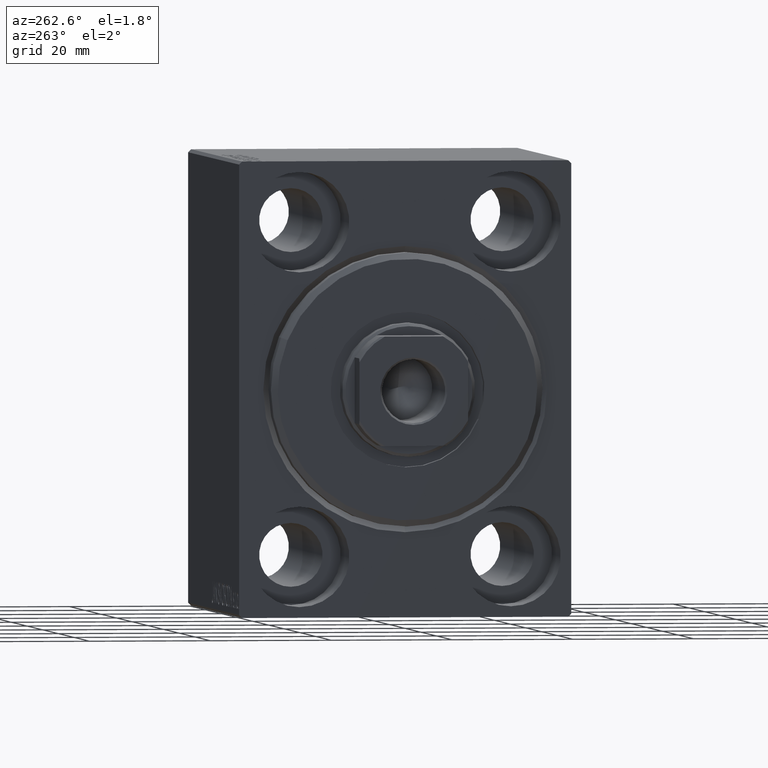
[diagram: clean part render]
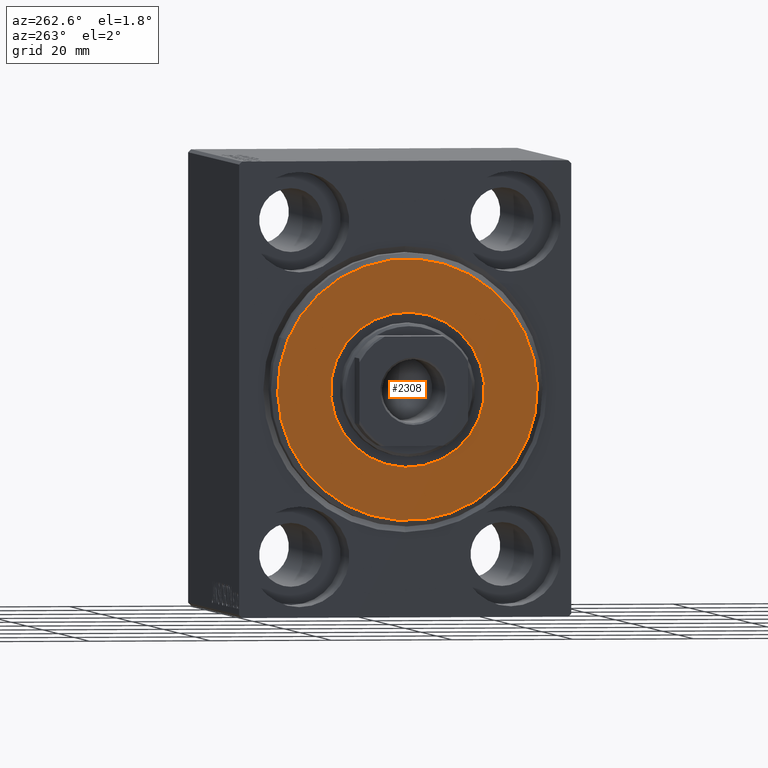
[diagram: same view with one face highlighted and labeled with its STEP entity id]
A machine part, auxiliary view. The second image highlights one B-rep face of the part: STEP entity #2308.
In plain terms, the highlighted planar face has unit normal (-1, 0, 0).
Its self-contained STEP definition (entity closure, byte-faithful):
#2308 = ADVANCED_FACE ( 'NONE', ( #19624, #9853 ), #12524, .T. ) ;
#6314 = AXIS2_PLACEMENT_3D ( 'NONE', #17160, #23602, #34060 ) ;
#7454 = VERTEX_POINT ( 'NONE', #16832 ) ;
#7637 = AXIS2_PLACEMENT_3D ( 'NONE', #28998, #12092, #15189 ) ;
#7808 = VERTEX_POINT ( 'NONE', #35315 ) ;
#8583 = ORIENTED_EDGE ( 'NONE', *, *, #16064, .T. ) ;
#9853 = FACE_BOUND ( 'NONE', #20686, .T. ) ;
#10906 = ORIENTED_EDGE ( 'NONE', *, *, #16219, .T. ) ;
#12092 = DIRECTION ( 'NONE',  ( -1.000000000000000000, 0.000000000000000000, -0.000000000000000000 ) ) ;
#12524 = PLANE ( 'NONE',  #20953 ) ;
#13306 = ORIENTED_EDGE ( 'NONE', *, *, #42585, .T. ) ;
#13356 = DIRECTION ( 'NONE',  ( 1.000000000000000000, -0.000000000000000000, 0.000000000000000000 ) ) ;
#13484 = EDGE_CURVE ( 'NONE', #7808, #7454, #41046, .T. ) ;
#14819 = CIRCLE ( 'NONE', #36841, 21.50000000000000355 ) ;
#15189 = DIRECTION ( 'NONE',  ( 0.000000000000000000, 0.000000000000000000, -1.000000000000000000 ) ) ;
#16064 = EDGE_CURVE ( 'NONE', #26552, #21856, #14819, .T. ) ;
#16219 = EDGE_CURVE ( 'NONE', #7454, #7808, #17681, .T. ) ;
#16832 = CARTESIAN_POINT ( 'NONE',  ( 3.000000000000000000, 1.561424668912874914E-15, -12.75000000000000000 ) ) ;
#17160 = CARTESIAN_POINT ( 'NONE',  ( 3.000000000000000000, 0.000000000000000000, 0.000000000000000000 ) ) ;
#17681 = CIRCLE ( 'NONE', #6314, 12.75000000000000000 ) ;
#19559 = DIRECTION ( 'NONE',  ( 0.000000000000000000, 0.000000000000000000, -1.000000000000000000 ) ) ;
#19624 = FACE_OUTER_BOUND ( 'NONE', #36464, .T. ) ;
#20238 = CARTESIAN_POINT ( 'NONE',  ( 3.000000000000000000, 0.000000000000000000, 0.000000000000000000 ) ) ;
#20686 = EDGE_LOOP ( 'NONE', ( #34065, #10906 ) ) ;
#20953 = AXIS2_PLACEMENT_3D ( 'NONE', #26087, #33632, #23416 ) ;
#21196 = CARTESIAN_POINT ( 'NONE',  ( 3.000000000000000000, 0.000000000000000000, 21.50000000000000355 ) ) ;
#21856 = VERTEX_POINT ( 'NONE', #21196 ) ;
#22695 = CARTESIAN_POINT ( 'NONE',  ( 3.000000000000000000, 0.000000000000000000, 0.000000000000000000 ) ) ;
#23355 = DIRECTION ( 'NONE',  ( 1.000000000000000000, -0.000000000000000000, 0.000000000000000000 ) ) ;
#23416 = DIRECTION ( 'NONE',  ( 0.000000000000000000, 0.000000000000000000, -1.000000000000000000 ) ) ;
#23602 = DIRECTION ( 'NONE',  ( -1.000000000000000000, 0.000000000000000000, -0.000000000000000000 ) ) ;
#26087 = CARTESIAN_POINT ( 'NONE',  ( 3.000000000000000000, 0.000000000000000000, 0.000000000000000000 ) ) ;
#26552 = VERTEX_POINT ( 'NONE', #26800 ) ;
#26800 = CARTESIAN_POINT ( 'NONE',  ( 3.000000000000000000, 2.694222958124177598E-15, -21.50000000000000355 ) ) ;
#27671 = AXIS2_PLACEMENT_3D ( 'NONE', #22695, #23355, #19559 ) ;
#28998 = CARTESIAN_POINT ( 'NONE',  ( 3.000000000000000000, 0.000000000000000000, 0.000000000000000000 ) ) ;
#33632 = DIRECTION ( 'NONE',  ( 1.000000000000000000, -0.000000000000000000, 0.000000000000000000 ) ) ;
#34060 = DIRECTION ( 'NONE',  ( 0.000000000000000000, 0.000000000000000000, -1.000000000000000000 ) ) ;
#34065 = ORIENTED_EDGE ( 'NONE', *, *, #13484, .T. ) ;
#35315 = CARTESIAN_POINT ( 'NONE',  ( 3.000000000000000000, 0.000000000000000000, 12.75000000000000000 ) ) ;
#36464 = EDGE_LOOP ( 'NONE', ( #13306, #8583 ) ) ;
#36841 = AXIS2_PLACEMENT_3D ( 'NONE', #20238, #13356, #40244 ) ;
#40244 = DIRECTION ( 'NONE',  ( 0.000000000000000000, 0.000000000000000000, -1.000000000000000000 ) ) ;
#41046 = CIRCLE ( 'NONE', #7637, 12.75000000000000000 ) ;
#42585 = EDGE_CURVE ( 'NONE', #21856, #26552, #43977, .T. ) ;
#43977 = CIRCLE ( 'NONE', #27671, 21.50000000000000355 ) ;